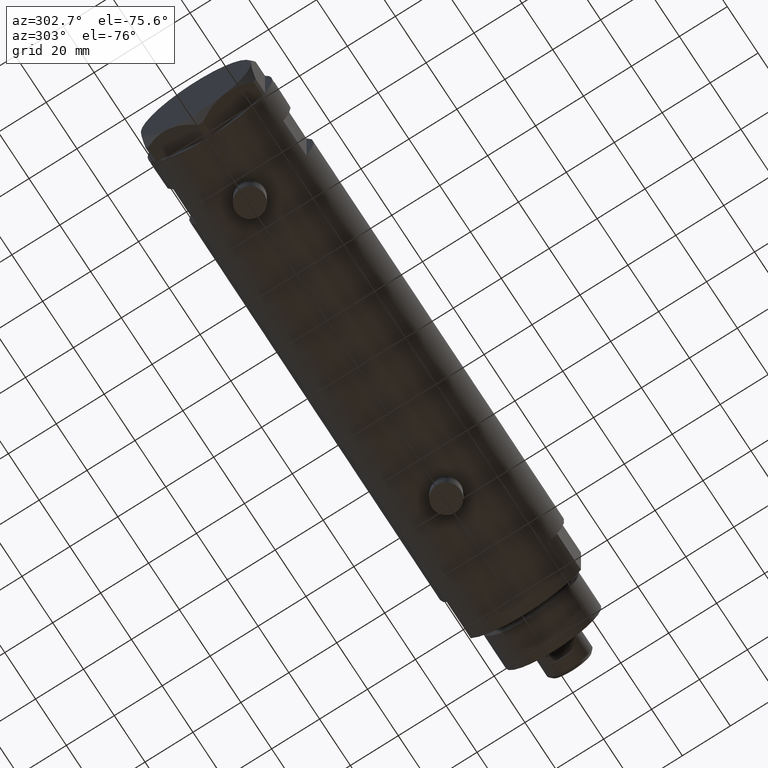
[diagram: clean part render]
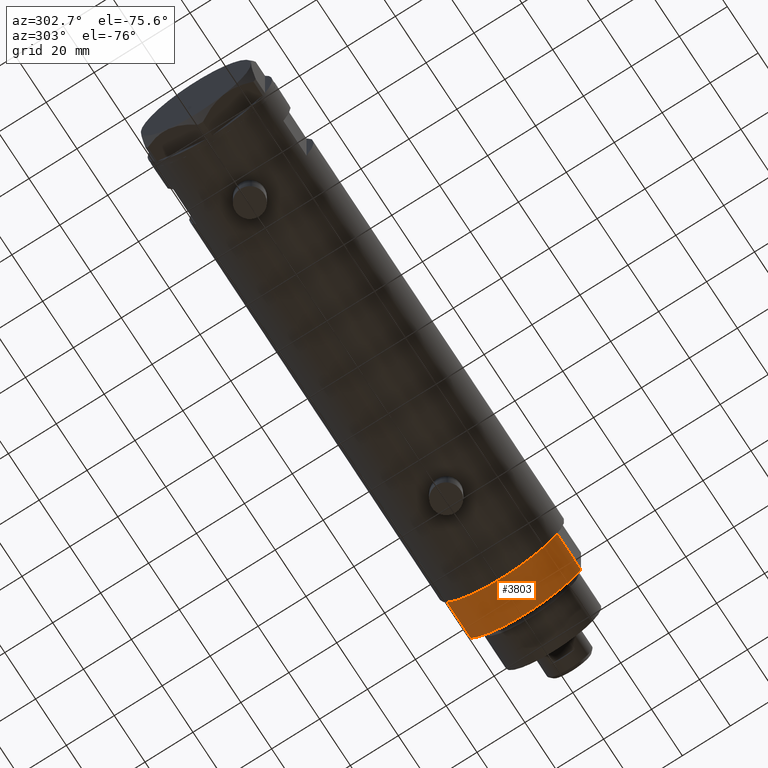
[diagram: same view with one face highlighted and labeled with its STEP entity id]
A machine part, auxiliary view. The second image highlights one B-rep face of the part: STEP entity #3803.
In plain terms, the highlighted cylindrical surface (partial cylindrical patch) has radius 26 mm, axis along (-1, -0, 0).
Its self-contained STEP definition (entity closure, byte-faithful):
#120 = VERTEX_POINT ( 'NONE', #3601 ) ;
#160 = ORIENTED_EDGE ( 'NONE', *, *, #360, .T. ) ;
#360 = EDGE_CURVE ( 'NONE', #4791, #1129, #3197, .T. ) ;
#387 = EDGE_CURVE ( 'NONE', #120, #2825, #1018, .T. ) ;
#559 = CARTESIAN_POINT ( 'NONE',  ( 12.12435565298215323, -22.99999999999999645, 0.000000000000000000 ) ) ;
#587 = CIRCLE ( 'NONE', #3945, 26.00000000000000355 ) ;
#616 = CARTESIAN_POINT ( 'NONE',  ( 12.12435565298214080, 23.00000000000000355, 0.000000000000000000 ) ) ;
#684 = DIRECTION ( 'NONE',  ( 1.000000000000000000, 0.000000000000000000, 0.000000000000000000 ) ) ;
#783 = CARTESIAN_POINT ( 'NONE',  ( 12.12435565298215323, -22.99999999999999645, 15.50000000000000000 ) ) ;
#801 = EDGE_LOOP ( 'NONE', ( #4764, #4133, #4274, #160 ) ) ;
#912 = DIRECTION ( 'NONE',  ( 1.000000000000000000, 0.000000000000000000, 0.000000000000000000 ) ) ;
#1018 = LINE ( 'NONE', #559, #1498 ) ;
#1129 = VERTEX_POINT ( 'NONE', #4835 ) ;
#1280 = DIRECTION ( 'NONE',  ( 0.000000000000000000, 0.000000000000000000, 1.000000000000000000 ) ) ;
#1405 = CARTESIAN_POINT ( 'NONE',  ( 0.000000000000000000, 0.000000000000000000, 15.50000000000000000 ) ) ;
#1460 = FACE_OUTER_BOUND ( 'NONE', #801, .T. ) ;
#1480 = DIRECTION ( 'NONE',  ( -0.000000000000000000, -0.000000000000000000, -1.000000000000000000 ) ) ;
#1498 = VECTOR ( 'NONE', #2026, 1000.000000000000000 ) ;
#1597 = CIRCLE ( 'NONE', #4667, 26.00000000000000355 ) ;
#2026 = DIRECTION ( 'NONE',  ( -0.000000000000000000, -0.000000000000000000, 1.000000000000000000 ) ) ;
#2251 = DIRECTION ( 'NONE',  ( 0.000000000000000000, 0.000000000000000000, 1.000000000000000000 ) ) ;
#2480 = DIRECTION ( 'NONE',  ( -0.000000000000000000, -0.000000000000000000, 1.000000000000000000 ) ) ;
#2624 = CARTESIAN_POINT ( 'NONE',  ( 0.000000000000000000, 0.000000000000000000, 15.50000000000000000 ) ) ;
#2825 = VERTEX_POINT ( 'NONE', #783 ) ;
#3054 = VECTOR ( 'NONE', #2480, 1000.000000000000000 ) ;
#3163 = EDGE_CURVE ( 'NONE', #120, #4791, #587, .T. ) ;
#3197 = LINE ( 'NONE', #4387, #3054 ) ;
#3601 = CARTESIAN_POINT ( 'NONE',  ( 12.12435565298215323, -22.99999999999999645, 0.000000000000000000 ) ) ;
#3729 = AXIS2_PLACEMENT_3D ( 'NONE', #2624, #1480, #4049 ) ;
#3803 = ADVANCED_FACE ( 'NONE', ( #1460 ), #4490, .T. ) ;
#3804 = EDGE_CURVE ( 'NONE', #2825, #1129, #1597, .T. ) ;
#3945 = AXIS2_PLACEMENT_3D ( 'NONE', #4657, #1280, #912 ) ;
#4049 = DIRECTION ( 'NONE',  ( -1.000000000000000000, 0.000000000000000000, 0.000000000000000000 ) ) ;
#4133 = ORIENTED_EDGE ( 'NONE', *, *, #387, .F. ) ;
#4274 = ORIENTED_EDGE ( 'NONE', *, *, #3163, .T. ) ;
#4387 = CARTESIAN_POINT ( 'NONE',  ( 12.12435565298215323, 23.00000000000000355, 0.000000000000000000 ) ) ;
#4490 = CYLINDRICAL_SURFACE ( 'NONE', #3729, 26.00000000000000355 ) ;
#4657 = CARTESIAN_POINT ( 'NONE',  ( 0.000000000000000000, 0.000000000000000000, 0.000000000000000000 ) ) ;
#4667 = AXIS2_PLACEMENT_3D ( 'NONE', #1405, #2251, #684 ) ;
#4764 = ORIENTED_EDGE ( 'NONE', *, *, #3804, .F. ) ;
#4791 = VERTEX_POINT ( 'NONE', #616 ) ;
#4835 = CARTESIAN_POINT ( 'NONE',  ( 12.12435565298214790, 23.00000000000000355, 15.50000000000000000 ) ) ;